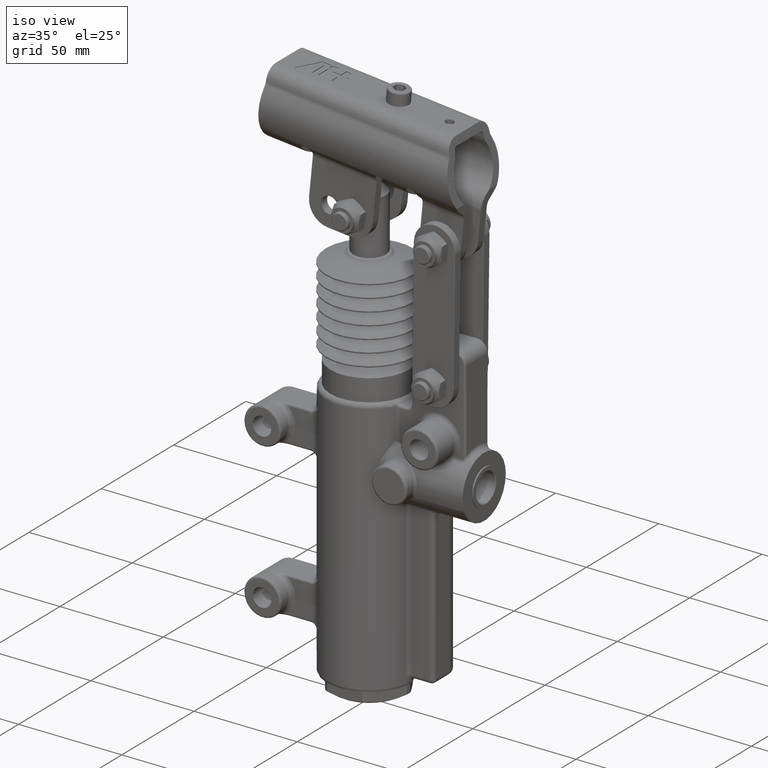
[diagram: clean part render]
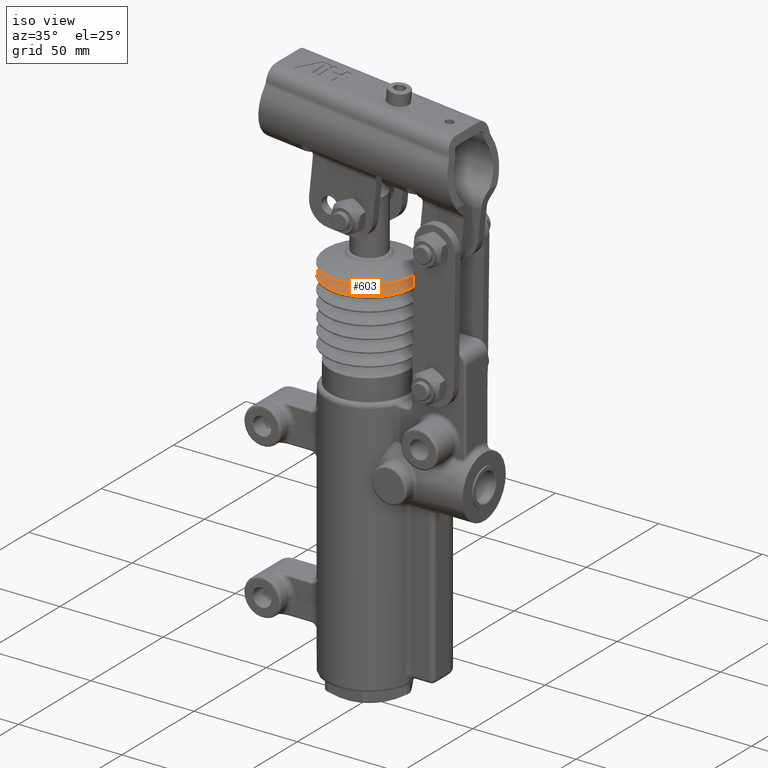
[diagram: same view with one face highlighted and labeled with its STEP entity id]
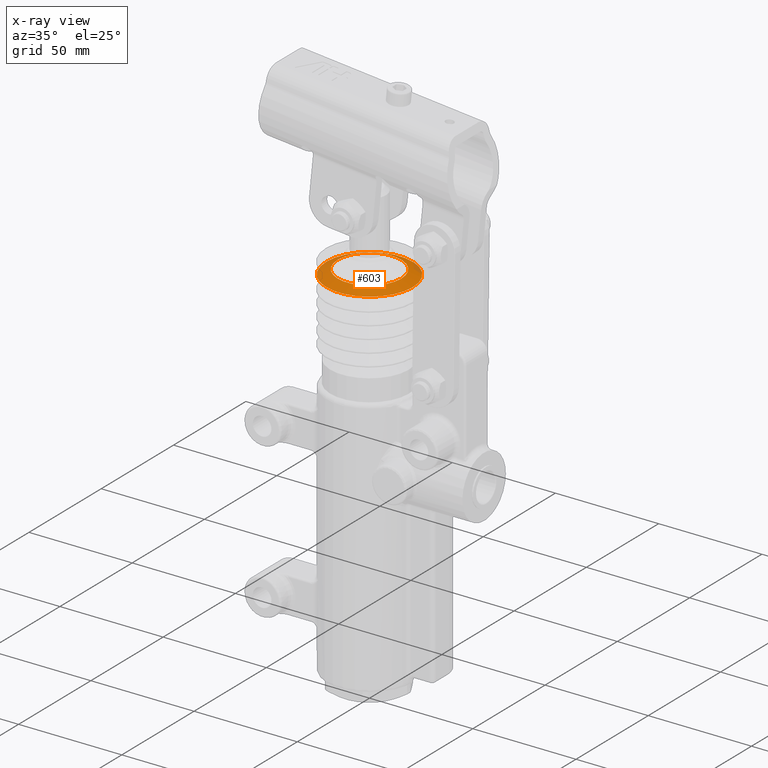
[diagram: x-ray of the same camera — body ghosted, the highlighted face saturated]
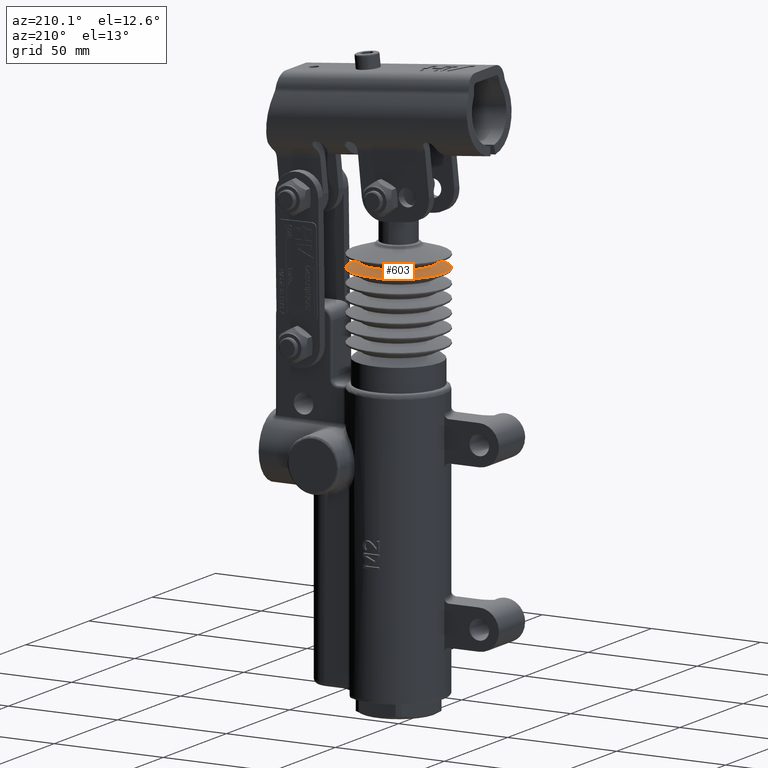
[diagram: same view with one face highlighted and labeled with its STEP entity id]
A machine part, iso view. The second image highlights one B-rep face of the part: STEP entity #603.
The next image is the same camera in x-ray: the body ghosted, the highlighted face saturated — about 3% of this face is hidden behind the body in this view.
A second angle (auxiliary view) of the same face is appended — the face is thin or edge-on in the first view.
In plain terms, the highlighted conical surface has half-angle 67.38 deg.
Its self-contained STEP definition (entity closure, byte-faithful):
#569=CARTESIAN_POINT('',(15.51760337876553,-14.066427113261401,174.1115384617903));
#570=VERTEX_POINT('',#569);
#571=CARTESIAN_POINT('',(6.680827E-015,4.055407E-015,174.1115384617903));
#572=DIRECTION('',(1.511637E-017,-1.370272E-017,1.0));
#573=DIRECTION('',(0.74090144014323,-0.671613769955387,-2.040267E-017));
#574=AXIS2_PLACEMENT_3D('',#571,#572,#573);
#575=CIRCLE('',#574,20.944220834238994);
#576=EDGE_CURVE('',#570,#570,#575,.T.);
#584=CARTESIAN_POINT('',(6.751476E-015,4.098293E-015,175.26538461563649));
#585=DIRECTION('',(-6.122934E-017,-3.716754E-017,-1.0));
#586=DIRECTION('',(0.740901440143231,-0.671613769955387,-2.040267E-017));
#587=AXIS2_PLACEMENT_3D('',#584,#585,#586);
#588=CONICAL_SURFACE('',#587,18.174990065008167,67.380135051958959);
#589=CARTESIAN_POINT('',(11.414149248741401,-10.346720079662262,176.41923076948271));
#590=VERTEX_POINT('',#589);
#591=CARTESIAN_POINT('',(6.822126E-015,4.141178E-015,176.41923076948271));
#592=DIRECTION('',(1.511637E-017,-1.370272E-017,1.0));
#593=DIRECTION('',(0.74090144014323,-0.671613769955387,-2.040267E-017));
#594=AXIS2_PLACEMENT_3D('',#591,#592,#593);
#595=CIRCLE('',#594,15.405759295777344);
#596=EDGE_CURVE('',#590,#590,#595,.T.);
#597=ORIENTED_EDGE('',*,*,#596,.F.);
#598=EDGE_LOOP('',(#597));
#599=FACE_OUTER_BOUND('',#598,.T.);
#600=ORIENTED_EDGE('',*,*,#576,.T.);
#601=EDGE_LOOP('',(#600));
#602=FACE_BOUND('',#601,.T.);
#603=ADVANCED_FACE('',(#599,#602),#588,.T.);